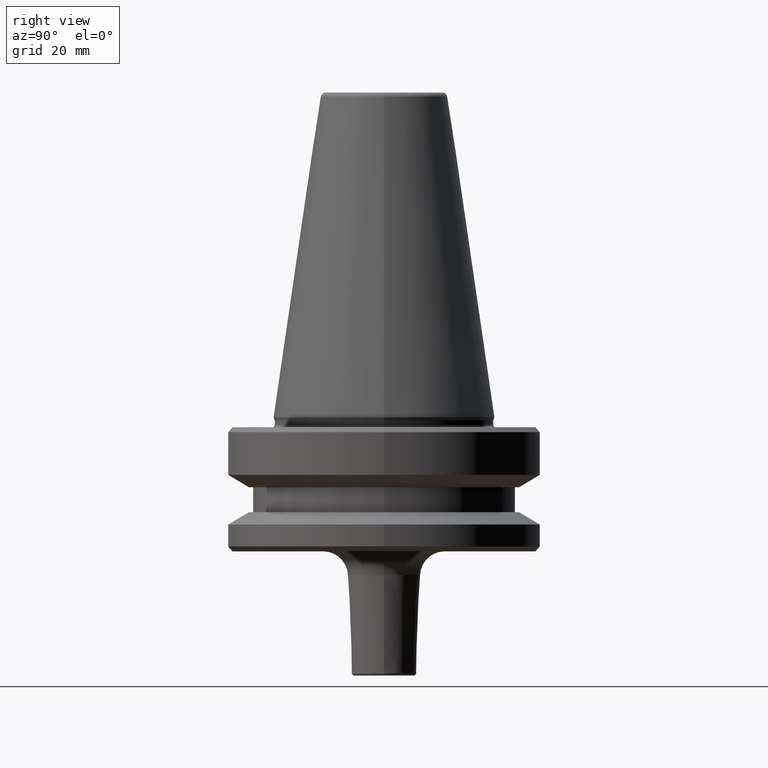
[diagram: clean part render]
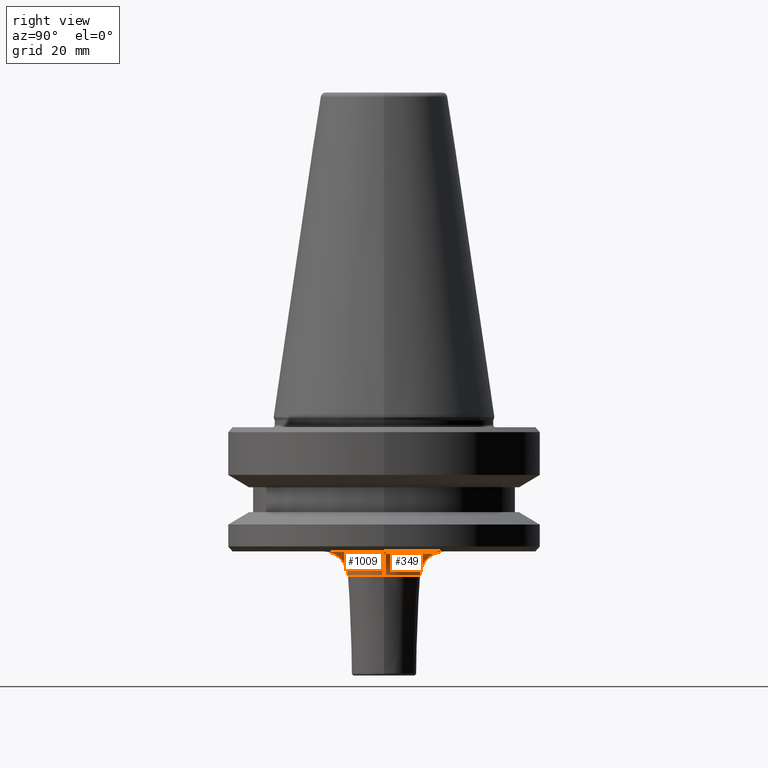
[diagram: same view with one multi-face feature highlighted, each face labeled with its STEP entity id]
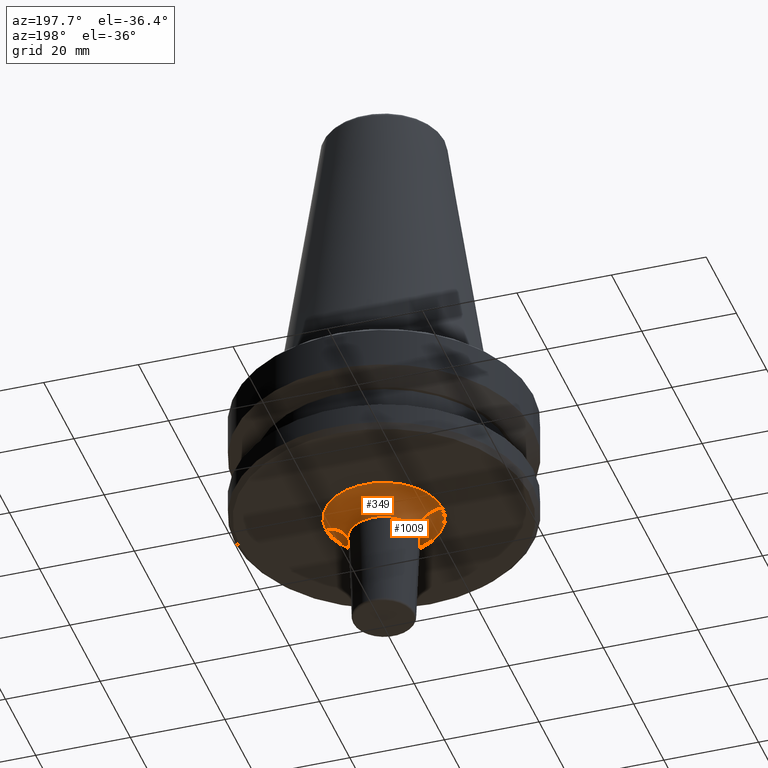
[diagram: same view with one multi-face feature highlighted, each face labeled with its STEP entity id]
A machine part, right view. The highlighted faces form ONE feature: a constant-radius fillet chain: 2 tangent blend faces with common blend radius 5 mm. The faces share edges in the B-rep.
A second angle (auxiliary view) of the same feature is appended — it is thin or edge-on in the first view.
Their STEP definitions:
[1] entity #349 (Torus):
#12 = VERTEX_POINT ( 'NONE', #167 ) ;
#73 = CARTESIAN_POINT ( 'NONE',  ( -12.30399840127871500, 1.506805225884012900E-015, -97.40000000000807700 ) ) ;
#81 = ORIENTED_EDGE ( 'NONE', *, *, #398, .T. ) ;
#84 = AXIS2_PLACEMENT_3D ( 'NONE', #306, #861, #390 ) ;
#143 = DIRECTION ( 'NONE',  ( 1.000000000000000000, 0.0000000000000000000, 0.0000000000000000000 ) ) ;
#158 = AXIS2_PLACEMENT_3D ( 'NONE', #937, #610, #143 ) ;
#161 = DIRECTION ( 'NONE',  ( -1.000000000000000000, 1.224646799147353500E-016, 0.0000000000000000000 ) ) ;
#167 = CARTESIAN_POINT ( 'NONE',  ( -12.30399840127871500, 1.506805225884012900E-015, -92.40000000000807700 ) ) ;
#213 = TOROIDAL_SURFACE ( 'NONE', #158, 12.30399840127871500, 5.000000000000002700 ) ;
#217 = DIRECTION ( 'NONE',  ( -0.0000000000000000000, -0.0000000000000000000, 1.000000000000000000 ) ) ;
#223 = EDGE_LOOP ( 'NONE', ( #369, #303, #744, #81 ) ) ;
#260 = VERTEX_POINT ( 'NONE', #655 ) ;
#303 = ORIENTED_EDGE ( 'NONE', *, *, #706, .F. ) ;
#306 = CARTESIAN_POINT ( 'NONE',  ( 0.0000000000000000000, 0.0000000000000000000, -97.20015980826372000 ) ) ;
#349 = ADVANCED_FACE ( 'NONE', ( #1037 ), #213, .F. ) ;
#366 = CIRCLE ( 'NONE', #517, 5.000000000000004400 ) ;
#369 = ORIENTED_EDGE ( 'NONE', *, *, #944, .F. ) ;
#390 = DIRECTION ( 'NONE',  ( 1.000000000000000000, 0.0000000000000000000, 0.0000000000000000000 ) ) ;
#398 = EDGE_CURVE ( 'NONE', #260, #536, #960, .T. ) ;
#445 = DIRECTION ( 'NONE',  ( 0.0000000000000000000, -1.000000000000000000, 0.0000000000000000000 ) ) ;
#497 = AXIS2_PLACEMENT_3D ( 'NONE', #73, #626, #161 ) ;
#517 = AXIS2_PLACEMENT_3D ( 'NONE', #922, #445, #1016 ) ;
#527 = CIRCLE ( 'NONE', #497, 5.000000000000004400 ) ;
#536 = VERTEX_POINT ( 'NONE', #895 ) ;
#610 = DIRECTION ( 'NONE',  ( -0.0000000000000000000, -0.0000000000000000000, 1.000000000000000000 ) ) ;
#626 = DIRECTION ( 'NONE',  ( 1.224646799147353200E-016, 1.000000000000000000, 0.0000000000000000000 ) ) ;
#634 = VERTEX_POINT ( 'NONE', #1006 ) ;
#655 = CARTESIAN_POINT ( 'NONE',  ( 7.307993607669765800, 0.0000000000000000000, -97.20015980826372000 ) ) ;
#674 = EDGE_CURVE ( 'NONE', #634, #260, #366, .T. ) ;
#679 = CARTESIAN_POINT ( 'NONE',  ( 0.0000000000000000000, 0.0000000000000000000, -92.40000000000807700 ) ) ;
#706 = EDGE_CURVE ( 'NONE', #634, #12, #800, .T. ) ;
#744 = ORIENTED_EDGE ( 'NONE', *, *, #674, .T. ) ;
#761 = DIRECTION ( 'NONE',  ( 1.000000000000000000, 0.0000000000000000000, 0.0000000000000000000 ) ) ;
#800 = CIRCLE ( 'NONE', #1044, 12.30399840127871500 ) ;
#861 = DIRECTION ( 'NONE',  ( -0.0000000000000000000, -0.0000000000000000000, 1.000000000000000000 ) ) ;
#895 = CARTESIAN_POINT ( 'NONE',  ( -7.307993607669765800, 1.200888161933111500E-015, -97.20015980826372000 ) ) ;
#922 = CARTESIAN_POINT ( 'NONE',  ( 12.30399840127871500, 0.0000000000000000000, -97.40000000000807700 ) ) ;
#937 = CARTESIAN_POINT ( 'NONE',  ( 0.0000000000000000000, 0.0000000000000000000, -97.40000000000807700 ) ) ;
#944 = EDGE_CURVE ( 'NONE', #12, #536, #527, .T. ) ;
#960 = CIRCLE ( 'NONE', #84, 7.307993607669765800 ) ;
#1006 = CARTESIAN_POINT ( 'NONE',  ( 12.30399840127871500, 0.0000000000000000000, -92.40000000000807700 ) ) ;
#1016 = DIRECTION ( 'NONE',  ( 0.0000000000000000000, 0.0000000000000000000, -1.000000000000000000 ) ) ;
#1037 = FACE_OUTER_BOUND ( 'NONE', #223, .T. ) ;
#1044 = AXIS2_PLACEMENT_3D ( 'NONE', #679, #217, #761 ) ;
[2] entity #1009 (Torus):
#12 = VERTEX_POINT ( 'NONE', #167 ) ;
#13 = CARTESIAN_POINT ( 'NONE',  ( 0.0000000000000000000, 0.0000000000000000000, -97.40000000000807700 ) ) ;
#18 = CARTESIAN_POINT ( 'NONE',  ( 0.0000000000000000000, 0.0000000000000000000, -97.20015980826372000 ) ) ;
#73 = CARTESIAN_POINT ( 'NONE',  ( -12.30399840127871500, 1.506805225884012900E-015, -97.40000000000807700 ) ) ;
#104 = DIRECTION ( 'NONE',  ( 1.000000000000000000, 0.0000000000000000000, 0.0000000000000000000 ) ) ;
#128 = CIRCLE ( 'NONE', #531, 7.307993607669765800 ) ;
#145 = AXIS2_PLACEMENT_3D ( 'NONE', #208, #750, #288 ) ;
#161 = DIRECTION ( 'NONE',  ( -1.000000000000000000, 1.224646799147353500E-016, 0.0000000000000000000 ) ) ;
#167 = CARTESIAN_POINT ( 'NONE',  ( -12.30399840127871500, 1.506805225884012900E-015, -92.40000000000807700 ) ) ;
#208 = CARTESIAN_POINT ( 'NONE',  ( 0.0000000000000000000, 0.0000000000000000000, -92.40000000000807700 ) ) ;
#232 = FACE_OUTER_BOUND ( 'NONE', #324, .T. ) ;
#251 = TOROIDAL_SURFACE ( 'NONE', #946, 12.30399840127871500, 5.000000000000002700 ) ;
#260 = VERTEX_POINT ( 'NONE', #655 ) ;
#288 = DIRECTION ( 'NONE',  ( 1.000000000000000000, 0.0000000000000000000, 0.0000000000000000000 ) ) ;
#324 = EDGE_LOOP ( 'NONE', ( #794, #885, #948, #544 ) ) ;
#366 = CIRCLE ( 'NONE', #517, 5.000000000000004400 ) ;
#445 = DIRECTION ( 'NONE',  ( 0.0000000000000000000, -1.000000000000000000, 0.0000000000000000000 ) ) ;
#493 = DIRECTION ( 'NONE',  ( 1.000000000000000000, 0.0000000000000000000, 0.0000000000000000000 ) ) ;
#497 = AXIS2_PLACEMENT_3D ( 'NONE', #73, #626, #161 ) ;
#517 = AXIS2_PLACEMENT_3D ( 'NONE', #922, #445, #1016 ) ;
#527 = CIRCLE ( 'NONE', #497, 5.000000000000004400 ) ;
#531 = AXIS2_PLACEMENT_3D ( 'NONE', #18, #580, #104 ) ;
#536 = VERTEX_POINT ( 'NONE', #895 ) ;
#544 = ORIENTED_EDGE ( 'NONE', *, *, #674, .F. ) ;
#580 = DIRECTION ( 'NONE',  ( -0.0000000000000000000, -0.0000000000000000000, 1.000000000000000000 ) ) ;
#626 = DIRECTION ( 'NONE',  ( 1.224646799147353200E-016, 1.000000000000000000, 0.0000000000000000000 ) ) ;
#634 = VERTEX_POINT ( 'NONE', #1006 ) ;
#640 = EDGE_CURVE ( 'NONE', #12, #634, #1013, .T. ) ;
#644 = DIRECTION ( 'NONE',  ( -0.0000000000000000000, -0.0000000000000000000, 1.000000000000000000 ) ) ;
#655 = CARTESIAN_POINT ( 'NONE',  ( 7.307993607669765800, 0.0000000000000000000, -97.20015980826372000 ) ) ;
#674 = EDGE_CURVE ( 'NONE', #634, #260, #366, .T. ) ;
#750 = DIRECTION ( 'NONE',  ( -0.0000000000000000000, -0.0000000000000000000, 1.000000000000000000 ) ) ;
#762 = EDGE_CURVE ( 'NONE', #536, #260, #128, .T. ) ;
#794 = ORIENTED_EDGE ( 'NONE', *, *, #640, .F. ) ;
#885 = ORIENTED_EDGE ( 'NONE', *, *, #944, .T. ) ;
#895 = CARTESIAN_POINT ( 'NONE',  ( -7.307993607669765800, 1.200888161933111500E-015, -97.20015980826372000 ) ) ;
#922 = CARTESIAN_POINT ( 'NONE',  ( 12.30399840127871500, 0.0000000000000000000, -97.40000000000807700 ) ) ;
#944 = EDGE_CURVE ( 'NONE', #12, #536, #527, .T. ) ;
#946 = AXIS2_PLACEMENT_3D ( 'NONE', #13, #644, #493 ) ;
#948 = ORIENTED_EDGE ( 'NONE', *, *, #762, .T. ) ;
#1006 = CARTESIAN_POINT ( 'NONE',  ( 12.30399840127871500, 0.0000000000000000000, -92.40000000000807700 ) ) ;
#1009 = ADVANCED_FACE ( 'NONE', ( #232 ), #251, .F. ) ;
#1013 = CIRCLE ( 'NONE', #145, 12.30399840127871500 ) ;
#1016 = DIRECTION ( 'NONE',  ( 0.0000000000000000000, 0.0000000000000000000, -1.000000000000000000 ) ) ;